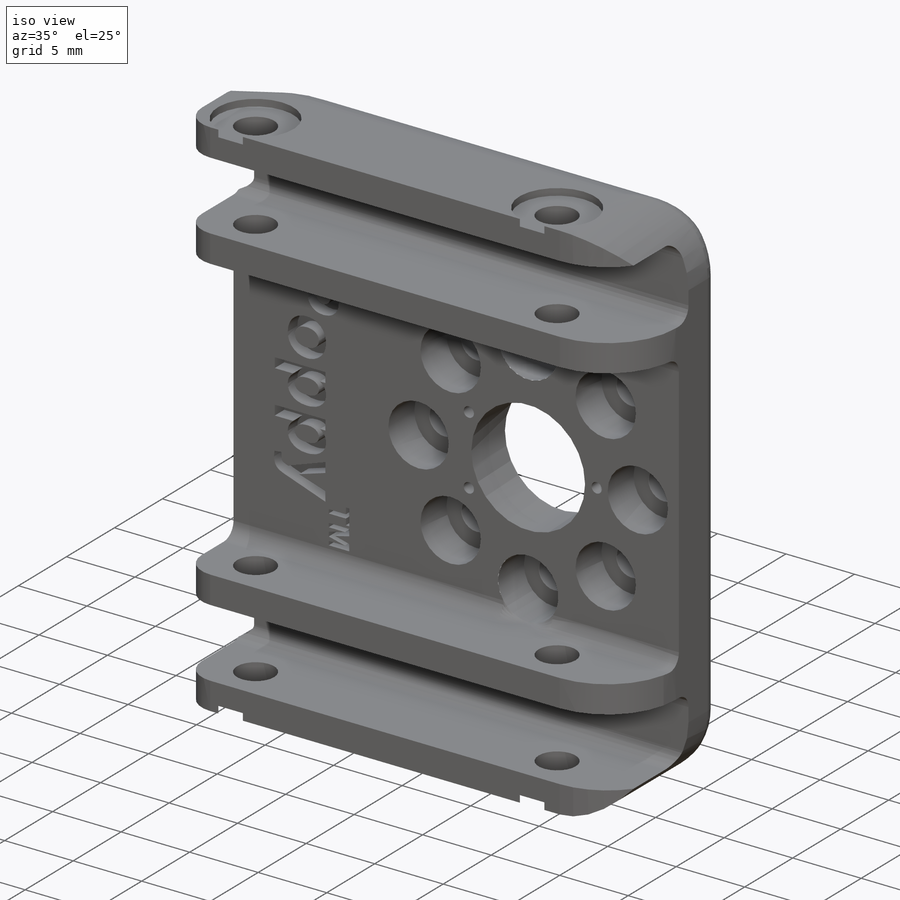
[diagram: iso view]
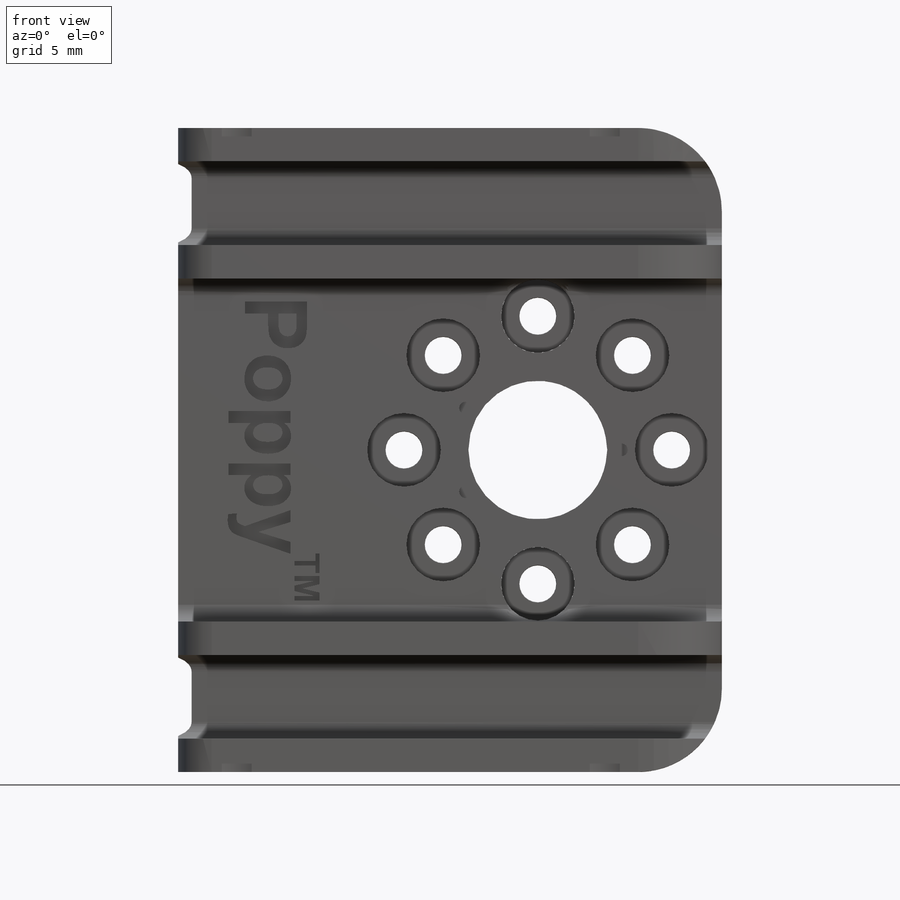
[diagram: front view]
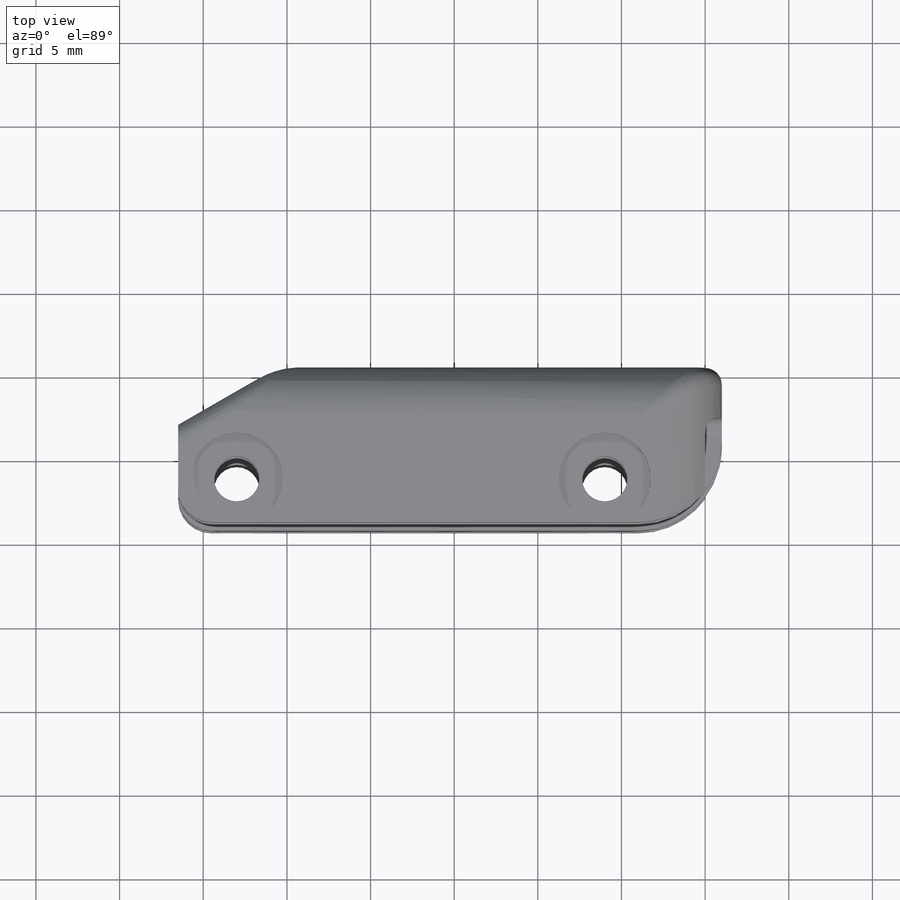
[diagram: top view]
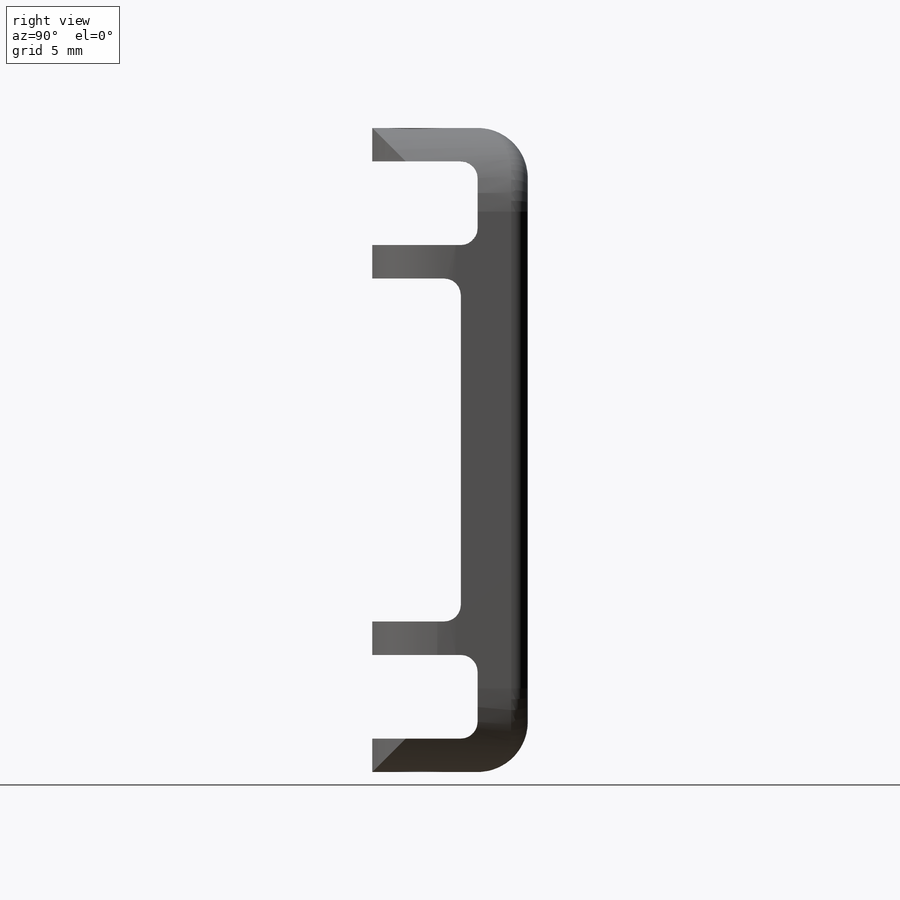
[diagram: right view]
SOLIDWORKS PART (.sldprt)
format: sldprt  version: not decoded by parser v0  size: 699,392 bytes
history: native  units: mm
features: sketch x13, fillet x6, cut_extrude x5, plane x3, extrude x2, hole x2, chamfer x2, material x1, mirror x1 (+9 scaffold rows collapsed)
feature tree (44):
  scaffold x9  (default folders/planes/origin — collapsed)
  material  "Polyamide"
  plane  "Plan de face"
  plane  "Plan de dessus"
  plane  "Plan de droite"
  sketch  "Sketch1"  dims[c1.D1=16.0mm c1.D2=2.0mm c1.D5=8.0mm c1.D3=60.0deg c2.D2=~7.963048mm c2.D4=8.0]
  sketch  "Sketch3"  dims[c1.D1=2.6mm c1.D2=2.6mm c1.D3=2.6mm c1.D5=2.6mm c2.D3=18.0mm c2.D4=4.0mm c2.D5=6.7mm]
  sketch  "Sketch4"  dims[c1.D4=22.0mm c1.D1=34.5mm c1.D2=38.5mm c1.D3=11.0mm c2.D4=19.25mm c2.D1=21.5mm c2.D5=~0.462024mm]
  extrude  "Boss-Extrude1"  Depth=9.3mm
  sketch  "Sketch5"  dims[D1=4.0mm D2=2.0mm D3=2.0mm]
  cut_extrude  "Cut-Extrude1"  [1 undecoded]
  sketch  "Sketch12"  dims[D1=0.15mm]
  cut_extrude  "Cut-Extrude2"  [1 undecoded]
  sketch  "Sketch13"  dims[c1.D1=0.75mm c1.D2=0.75mm c1.D3=0.75mm c2.D1=0.75mm c2.D2=4.5mm c2.D3=5.0mm c3.D2=5.1mm c3.D3=5.1mm c4.D2=1.0mm]
  cut_extrude  "Cut-Extrude3"  Depth=1mm
  sketch  "Sketch14"  dims[c1.D1=10.75mm c1.D2=1.5mm c1.D3=10.75mm c1.D4=1.5mm c2.D3=12.25mm c2.D4=2.0mm c2.D1=~23.288559mm]
  extrude  "Boss-Extrude2"  [1 undecoded]
  hole  "CBORE for M2 Hex Socket Head Cap Screw1"  Diameter=2.2mm Depth=4mm
  sketch  "Sketch11"
  sketch  "Sketch10"  dims[c1.D1=25.4mm c1.D2=95.25mm c1.4=25.4mm c1.D4=19.05mm c1.D7=33.02mm c1.D5=25.4mm c1.D3=50.8mm c1.D6=31.75mm c2.D5=58.42mm c2.D7=~8.980256mm c2.D8=~8.980256mm c2.D9=~17.960512mm c2.D3=50.8mm c2.D4=25.4mm c3.D5=58.42mm c3.D6=~4.444873mm c3.D7=33.02mm c3.D8=~4.444873mm c3.D9=~14.816244mm c3.D1=12.7mm c3.D2=101.6mm c4.D1=25.4mm c4.D2=101.6mm c4.D3=50.8mm c4.D4=31.75mm c4.D5=58.42mm c4.D6=~4.444873mm c4.D7=33.02mm c4.D8=~4.444873mm c4.D9=30.48mm c4.D10=~8.980256mm c4.Thru Hole Dia.=2.2mm c4.Thru Hole Depth=4.0mm c4.C'Bore Dia.=4.4mm c4.C'Bore Depth=2.7mm c4.Mid C'Sink Dia.=2.25mm c5.D6=~5.388154mm]
  hole  "CBORE for M2.5 Hex Socket Head Cap Screw1"  Diameter=2.7mm Depth=29.499mm
  sketch  "Sketch7"
  sketch  "Sketch6"  dims[c1.D1=25.4mm c1.D2=93.98mm c1.4=25.4mm c1.D4=19.05mm c1.D7=33.02mm c1.D5=25.4mm c1.D3=50.8mm c1.D6=31.75mm c2.D5=58.42mm c2.D7=~8.980256mm c2.D8=~8.980256mm c2.D9=~17.960512mm c2.D3=50.8mm c2.D4=31.75mm c3.D5=58.42mm c3.D6=~4.444873mm c3.D7=33.02mm c3.D8=~4.444873mm c3.D9=~14.816244mm c3.Hole Dia.=2.7mm c3.Hole Depth=29.499mm c3.C'Bore Dia.=5.5mm c3.C'Bore Depth=0.5mm c3.Mid C'Sink Dia.=2.75mm c4.D6=~5.388154mm c4.D7=~14.816244mm]
  mirror  "Mirror1"
  sketch  "Sketch15"
  cut_extrude  "Cut-Extrude4"  Depth=1mm
  chamfer  "Chamfer1"  Distance=0.5mm
  chamfer  "Chamfer3"  Distance=6mm
  fillet  "Fillet1"  Radius=3mm
  fillet  "Fillet3"  Radius=1mm
  fillet  "Fillet4"  Radius=5mm
  fillet  "Fillet7"  Radius=2mm
  fillet  "Fillet5"  Radius=5mm
  fillet  "Fillet9"  Radius=1mm
  sketch  "Sketch16"  dims[D1=18.5mm D2=4.0mm]
  cut_extrude  "Poppy_trademark"  Depth=1mm
decode coverage: 24 of 31 modeling features carry decoded parameters
note: ~ marks probable driven/reference dimensions
note: 3 parameter values undecoded
summary: no parameter record found for 3 features
note: suppression state not decoded; provenance and decode notes live in map.json
